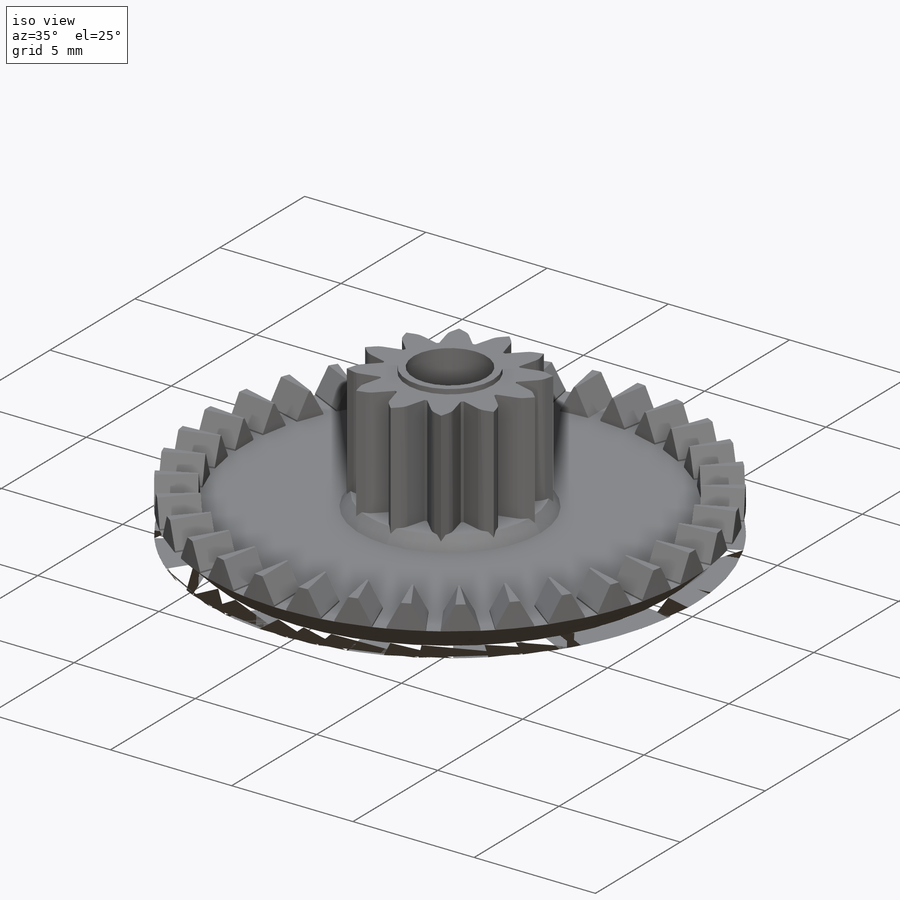
[diagram: iso view]
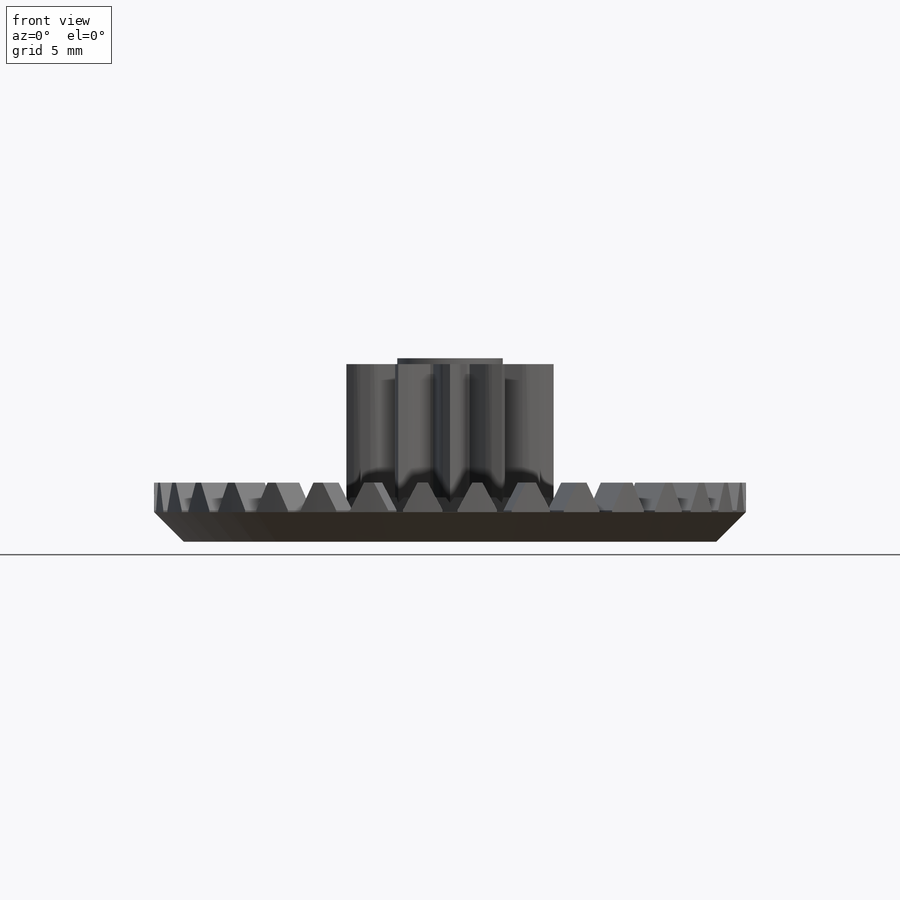
[diagram: front view]
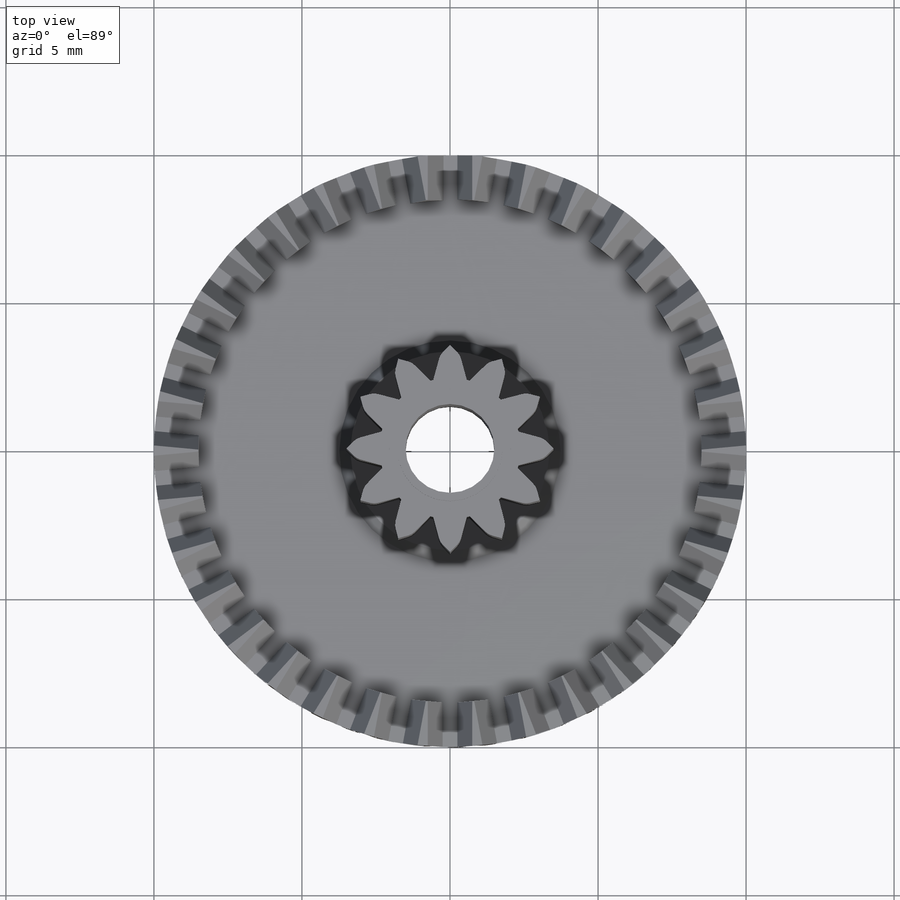
[diagram: top view]
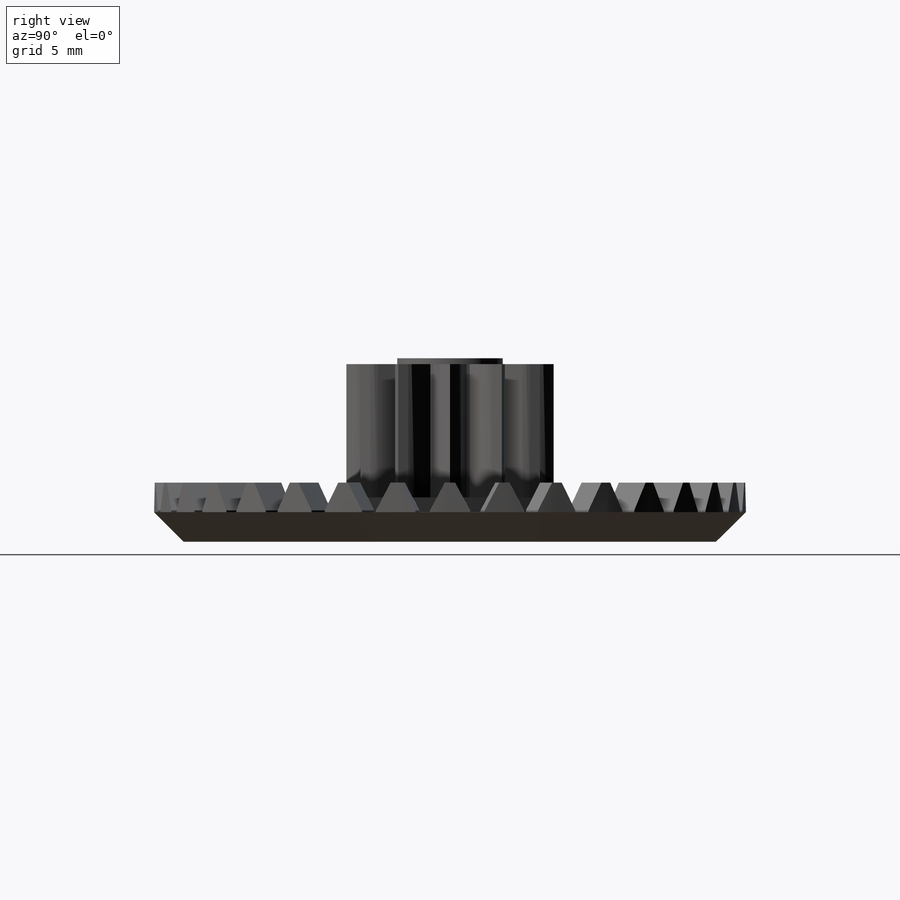
[diagram: right view]
SOLIDWORKS PART (.sldprt)
format: sldprt  version: not decoded by parser v0  size: 2,291,712 bytes
history: native  units: mm
features: sketch x9, cut_extrude x5, extrude x4, chamfer x4, material x1, fillet x1 (+16 scaffold rows collapsed)
feature tree (40):
  scaffold x16  (default folders/planes/origin — collapsed)
  material  "Polyethylene Cross-Linked"
  sketch  "Sketch1"  dims[D1=20.0mm]
  extrude  "Boss-Extrude1"  Depth=2mm
  chamfer  "Chamfer1"  Distance=1mm Angle=45deg
  sketch  "Sketch2"  dims[D1=1.5mm]
  cut_extrude  "Cut-Extrude1"  Depth=1mm
  sketch  "Sketch3"  dims[D2=0.5mm D1=34.0 D3=34.0]
  cut_extrude  "Cut-Extrude2"  [1 undecoded]
  chamfer  "Chamfer2"  Distance=0.5mm Angle=62deg
  sketch  "Sketch5"  dims[D1=7.0mm]
  extrude  "Boss-Extrude2"  Depth=5mm
  sketch  "Sketch6"  dims[D1=3.0mm]
  cut_extrude  "Cut-Extrude3"  [1 undecoded]
  sketch  "Sketch7"  dims[D4=0.5mm D2=1.0mm D3=0.05mm D1=12.0 D5=12.0]
  cut_extrude  "Cut-Extrude4"  Depth=4.5mm
  sketch  "Sketch8"
  extrude  "Boss-Extrude3"  Depth=0.5mm
  chamfer  "Chamfer3"  Distance=0.5mm Angle=37deg
  sketch  "Sketch9"  dims[D1=7.0mm]
  cut_extrude  "Cut-Extrude7"  Depth=0.5mm
  chamfer  "Chamfer4"  Distance=0.5mm Angle=37deg
  sketch  "Sketch10"
  extrude  "Boss-Extrude4"  Depth=0.2mm
  fillet  "Fillet1"  Radius=0.2mm
decode coverage: 19 of 23 modeling features carry decoded parameters
note: 2 parameter values undecoded
note: suppression state not decoded; provenance and decode notes live in map.json
